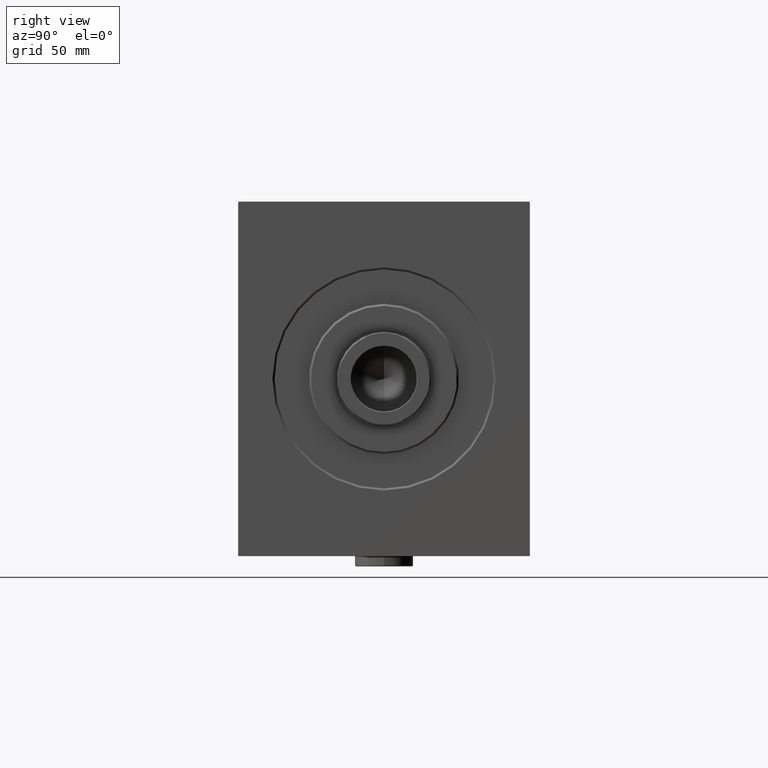
[diagram: clean part render]
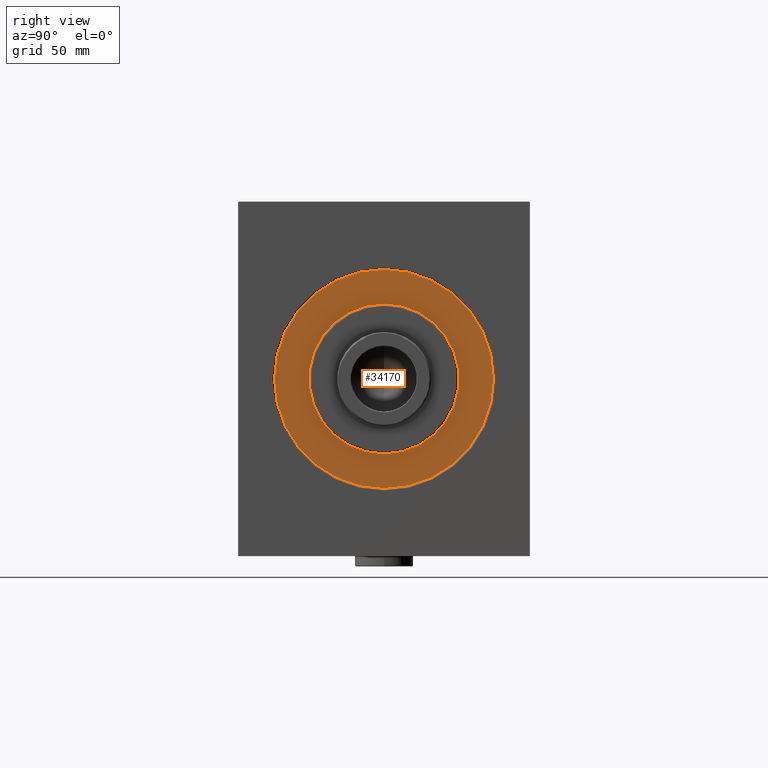
[diagram: same view with one face highlighted and labeled with its STEP entity id]
A machine part, right view. The second image highlights one B-rep face of the part: STEP entity #34170.
In plain terms, the highlighted planar face has unit normal (-1, 0, 0).
Its self-contained STEP definition (entity closure, byte-faithful):
#1010 = DIRECTION ( 'NONE',  ( 0.000000000000000000, 0.000000000000000000, -1.000000000000000000 ) ) ;
#1194 = CARTESIAN_POINT ( 'NONE',  ( 0.000000000000000000, 4.408728476930470856E-15, -36.00000000000000000 ) ) ;
#1935 = CARTESIAN_POINT ( 'NONE',  ( 0.000000000000000000, 0.000000000000000000, 0.000000000000000000 ) ) ;
#2777 = DIRECTION ( 'NONE',  ( -1.000000000000000000, 0.000000000000000000, 0.000000000000000000 ) ) ;
#3229 = EDGE_LOOP ( 'NONE', ( #15742, #5248 ) ) ;
#3419 = ORIENTED_EDGE ( 'NONE', *, *, #3452, .F. ) ;
#3452 = EDGE_CURVE ( 'NONE', #32829, #33340, #32909, .T. ) ;
#4182 = AXIS2_PLACEMENT_3D ( 'NONE', #1935, #15835, #29731 ) ;
#4279 = DIRECTION ( 'NONE',  ( 0.000000000000000000, 0.000000000000000000, -1.000000000000000000 ) ) ;
#5015 = CARTESIAN_POINT ( 'NONE',  ( 0.000000000000000000, 6.429395695523603956E-15, 52.50000000000000000 ) ) ;
#5248 = ORIENTED_EDGE ( 'NONE', *, *, #19476, .F. ) ;
#7850 = CARTESIAN_POINT ( 'NONE',  ( 0.000000000000000000, 0.000000000000000000, 0.000000000000000000 ) ) ;
#8576 = EDGE_CURVE ( 'NONE', #21070, #9672, #29385, .T. ) ;
#9051 = CARTESIAN_POINT ( 'NONE',  ( 0.000000000000000000, 0.000000000000000000, -52.50000000000000000 ) ) ;
#9672 = VERTEX_POINT ( 'NONE', #1194 ) ;
#9817 = DIRECTION ( 'NONE',  ( 1.000000000000000000, -0.000000000000000000, 0.000000000000000000 ) ) ;
#10327 = DIRECTION ( 'NONE',  ( 0.000000000000000000, 0.000000000000000000, 1.000000000000000000 ) ) ;
#13701 = CARTESIAN_POINT ( 'NONE',  ( 0.000000000000000000, 0.000000000000000000, 0.000000000000000000 ) ) ;
#15742 = ORIENTED_EDGE ( 'NONE', *, *, #8576, .F. ) ;
#15835 = DIRECTION ( 'NONE',  ( -1.000000000000000000, 0.000000000000000000, 0.000000000000000000 ) ) ;
#17341 = PLANE ( 'NONE',  #22918 ) ;
#17712 = ORIENTED_EDGE ( 'NONE', *, *, #42469, .F. ) ;
#17744 = AXIS2_PLACEMENT_3D ( 'NONE', #7850, #25601, #1010 ) ;
#19476 = EDGE_CURVE ( 'NONE', #9672, #21070, #27414, .T. ) ;
#21070 = VERTEX_POINT ( 'NONE', #34488 ) ;
#22918 = AXIS2_PLACEMENT_3D ( 'NONE', #13701, #2777, #27602 ) ;
#23999 = DIRECTION ( 'NONE',  ( -1.000000000000000000, 0.000000000000000000, 0.000000000000000000 ) ) ;
#24176 = FACE_BOUND ( 'NONE', #3229, .T. ) ;
#24545 = CIRCLE ( 'NONE', #4182, 52.50000000000000000 ) ;
#25601 = DIRECTION ( 'NONE',  ( 1.000000000000000000, -0.000000000000000000, 0.000000000000000000 ) ) ;
#27131 = CARTESIAN_POINT ( 'NONE',  ( 0.000000000000000000, 0.000000000000000000, 0.000000000000000000 ) ) ;
#27242 = EDGE_LOOP ( 'NONE', ( #3419, #17712 ) ) ;
#27377 = FACE_OUTER_BOUND ( 'NONE', #27242, .T. ) ;
#27414 = CIRCLE ( 'NONE', #31762, 36.00000000000000000 ) ;
#27602 = DIRECTION ( 'NONE',  ( 0.000000000000000000, 0.000000000000000000, 1.000000000000000000 ) ) ;
#29385 = CIRCLE ( 'NONE', #17744, 36.00000000000000000 ) ;
#29731 = DIRECTION ( 'NONE',  ( 0.000000000000000000, 0.000000000000000000, 1.000000000000000000 ) ) ;
#31452 = AXIS2_PLACEMENT_3D ( 'NONE', #31511, #23999, #10327 ) ;
#31511 = CARTESIAN_POINT ( 'NONE',  ( 0.000000000000000000, 0.000000000000000000, 0.000000000000000000 ) ) ;
#31762 = AXIS2_PLACEMENT_3D ( 'NONE', #27131, #9817, #4279 ) ;
#32829 = VERTEX_POINT ( 'NONE', #9051 ) ;
#32909 = CIRCLE ( 'NONE', #31452, 52.50000000000000000 ) ;
#33340 = VERTEX_POINT ( 'NONE', #5015 ) ;
#34170 = ADVANCED_FACE ( 'NONE', ( #24176, #27377 ), #17341, .F. ) ;
#34488 = CARTESIAN_POINT ( 'NONE',  ( 0.000000000000000000, 0.000000000000000000, 36.00000000000000000 ) ) ;
#42469 = EDGE_CURVE ( 'NONE', #33340, #32829, #24545, .T. ) ;